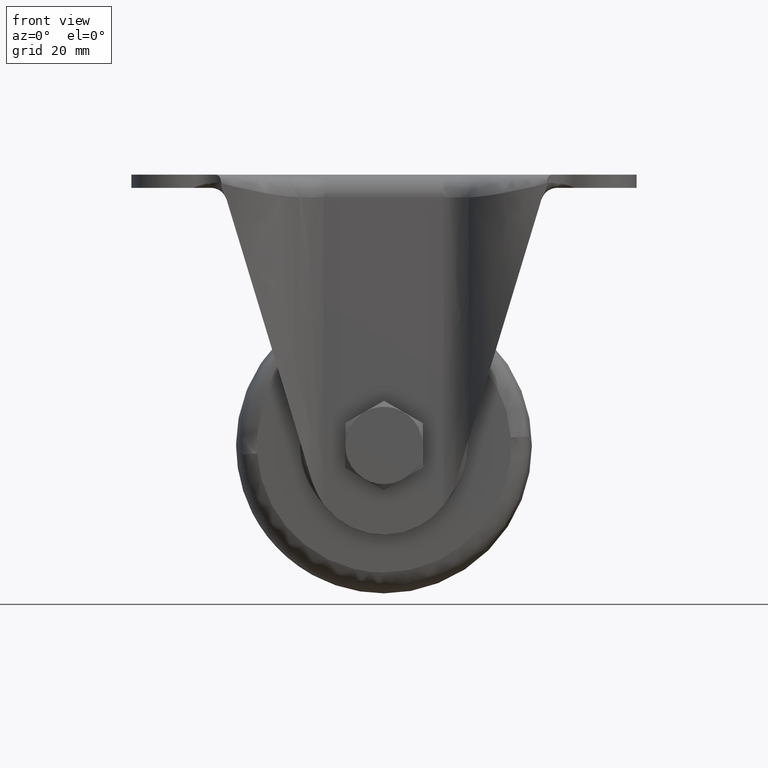
[diagram: clean part render]
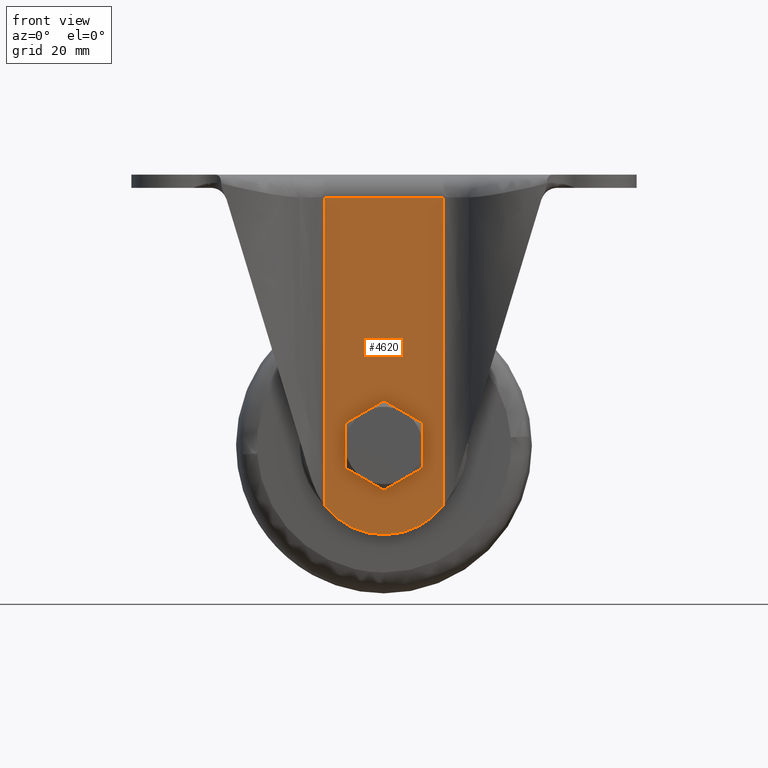
[diagram: same view with one face highlighted and labeled with its STEP entity id]
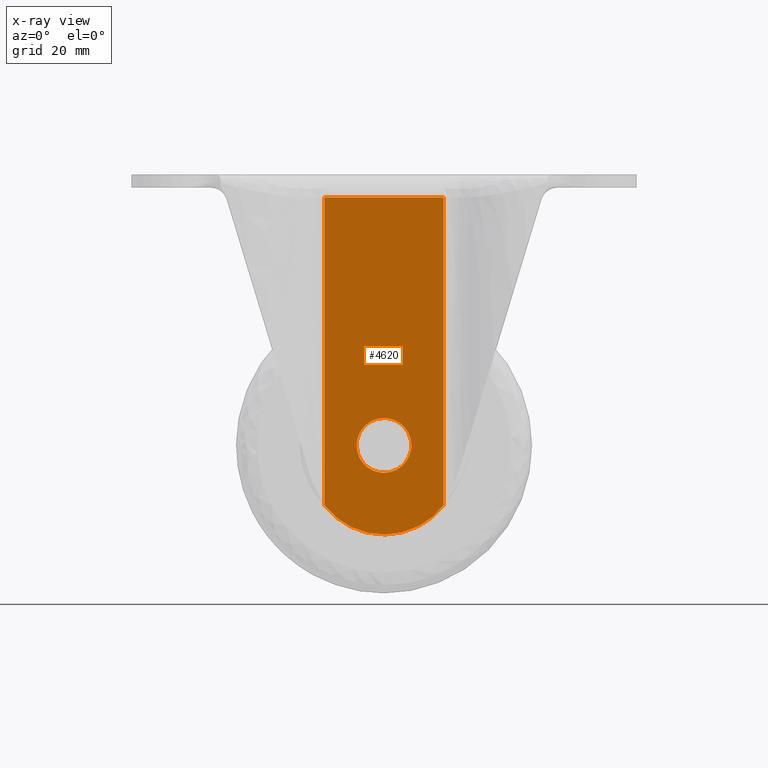
[diagram: x-ray of the same camera — body ghosted, the highlighted face saturated]
A machine part, front view. The second image highlights one B-rep face of the part: STEP entity #4620.
The next image is the same camera in x-ray: the body ghosted, the highlighted face saturated — about 0% of this face is hidden behind the body in this view.
In plain terms, the highlighted face is a freeform B-spline surface patch.
Its self-contained STEP definition (entity closure, byte-faithful):
#3469=CARTESIAN_POINT('',(-6.004737349291819,-24.0,-59.552402549338439));
#3470=VERTEX_POINT('',#3469);
#3471=CARTESIAN_POINT('',(0.0,-24.0,-65.504966000000110));
#3472=VERTEX_POINT('',#3471);
#3473=CARTESIAN_POINT('',(-6.004737349291821,-24.0,-59.552402549338446));
#3474=CARTESIAN_POINT('',(-5.952790114672094,-24.000000000000004,-65.504966000000124));
#3475=CARTESIAN_POINT('',(0.0,-24.0,-65.504966000000110));
#3483=(BOUNDED_CURVE()B_SPLINE_CURVE(2,(#3473,#3474,#3475),.UNSPECIFIED.,.F.,.U.)B_SPLINE_CURVE_WITH_KNOTS((3,3),(0.751539894345926,1.0),.UNSPECIFIED.)CURVE()GEOMETRIC_REPRESENTATION_ITEM()RATIONAL_B_SPLINE_CURVE((0.996414028075090,0.708910879632991,1.0))REPRESENTATION_ITEM(''));
#3484=EDGE_CURVE('',#3470,#3472,#3483,.T.);
#3486=CARTESIAN_POINT('',(6.004737349291819,-24.0,-59.447597450661547));
#3487=VERTEX_POINT('',#3486);
#3488=CARTESIAN_POINT('',(0.0,-24.0,-65.504966000000110));
#3489=CARTESIAN_POINT('',(6.004966000000110,-24.0,-65.504966000000110));
#3490=CARTESIAN_POINT('',(6.004966000000110,-24.0,-59.500000000000000));
#3491=CARTESIAN_POINT('',(6.004966000000110,-24.000000000000007,-59.473798226489151));
#3492=CARTESIAN_POINT('',(6.004737349291820,-24.000000000000004,-59.447597450661569));
#3500=(BOUNDED_CURVE()B_SPLINE_CURVE(2,(#3488,#3489,#3490,#3491,#3492),.UNSPECIFIED.,.F.,.U.)B_SPLINE_CURVE_WITH_KNOTS((3,2,3),(0.0,0.250000000000000,0.251539894345926),.UNSPECIFIED.)CURVE()GEOMETRIC_REPRESENTATION_ITEM()RATIONAL_B_SPLINE_CURVE((1.0,0.707106781186547,1.0,0.998195901553556,0.996414028075090))REPRESENTATION_ITEM(''));
#3501=EDGE_CURVE('',#3472,#3487,#3500,.T.);
#3568=CARTESIAN_POINT('',(0.0,-24.0,-53.495033999999883));
#3569=VERTEX_POINT('',#3568);
#3570=CARTESIAN_POINT('',(0.0,-24.0,-53.495033999999883));
#3571=CARTESIAN_POINT('',(-6.004966000000110,-24.0,-53.495033999999897));
#3572=CARTESIAN_POINT('',(-6.004966000000110,-24.0,-59.500000000000000));
#3573=CARTESIAN_POINT('',(-6.004966000000110,-24.000000000000007,-59.526201773510849));
#3574=CARTESIAN_POINT('',(-6.004737349291820,-24.000000000000004,-59.552402549338446));
#3582=(BOUNDED_CURVE()B_SPLINE_CURVE(2,(#3570,#3571,#3572,#3573,#3574),.UNSPECIFIED.,.F.,.U.)B_SPLINE_CURVE_WITH_KNOTS((3,2,3),(0.500000000000000,0.750000000000000,0.751539894345926),.UNSPECIFIED.)CURVE()GEOMETRIC_REPRESENTATION_ITEM()RATIONAL_B_SPLINE_CURVE((1.0,0.707106781186547,1.0,0.998195901553556,0.996414028075090))REPRESENTATION_ITEM(''));
#3583=EDGE_CURVE('',#3569,#3470,#3582,.T.);
#3617=CARTESIAN_POINT('',(6.004737349291820,-23.999999999999996,-59.447597450661561));
#3618=CARTESIAN_POINT('',(5.952790114672085,-23.999999999999993,-53.495033999999876));
#3619=CARTESIAN_POINT('',(0.0,-24.0,-53.495033999999883));
#3627=(BOUNDED_CURVE()B_SPLINE_CURVE(2,(#3617,#3618,#3619),.UNSPECIFIED.,.F.,.U.)B_SPLINE_CURVE_WITH_KNOTS((3,3),(0.251539894345926,0.500000000000000),.UNSPECIFIED.)CURVE()GEOMETRIC_REPRESENTATION_ITEM()RATIONAL_B_SPLINE_CURVE((0.996414028075089,0.708910879632991,1.0))REPRESENTATION_ITEM(''));
#3628=EDGE_CURVE('',#3487,#3569,#3627,.T.);
#3679=CARTESIAN_POINT('',(13.112529000000640,-23.999999999999648,-72.615372927514002));
#3680=VERTEX_POINT('',#3679);
#3700=CARTESIAN_POINT('',(-13.112339000000080,-24.0,-72.615621673442291));
#3701=VERTEX_POINT('',#3700);
#3702=CARTESIAN_POINT('',(-13.112339000000080,-24.0,-72.615621673442291));
#3703=CARTESIAN_POINT('',(-12.417725831248200,-24.0,-73.525299456196322));
#3704=CARTESIAN_POINT('',(-11.083135146959631,-24.000000000000099,-74.939275140767862));
#3705=CARTESIAN_POINT('',(-8.890997289151644,-23.999999999999790,-76.566771862925293));
#3706=CARTESIAN_POINT('',(-6.906420154542095,-24.000000000000291,-77.638368338820328));
#3707=CARTESIAN_POINT('',(-4.503213310975804,-23.999999999999890,-78.549583937599280));
#3708=CARTESIAN_POINT('',(-1.860175539993448,-23.999999999999641,-79.087873210821115));
#3709=CARTESIAN_POINT('',(0.951082077568282,-24.000000000000050,-79.138166052318240));
#3710=CARTESIAN_POINT('',(3.303138813664660,-23.999999999999869,-78.815443455115485));
#3711=CARTESIAN_POINT('',(5.628320188742806,-24.000000000000089,-78.174216077863946));
#3712=CARTESIAN_POINT('',(7.657297217893557,-23.999999999999961,-77.277368959635155));
#3713=CARTESIAN_POINT('',(9.503498799746195,-24.000000000000082,-76.129712946015601));
#3714=CARTESIAN_POINT('',(11.304481615314980,-23.999999999999631,-74.710678862472818));
#3715=CARTESIAN_POINT('',(12.465797078637250,-24.000000000000750,-73.462294132649106));
#3716=CARTESIAN_POINT('',(13.112529000000640,-23.999999999999648,-72.615372927514002));
#3717=B_SPLINE_CURVE_WITH_KNOTS('',3,(#3702,#3703,#3704,#3705,#3706,#3707,#3708,#3709,#3710,#3711,#3712,#3713,#3714,#3715,#3716),.UNSPECIFIED.,.F.,.U.,(4,1,1,1,1,1,1,1,1,1,1,1,4),(0.000000103569533,3.433614908485872,5.801637265684818,8.169660874223364,10.182475154637670,13.497740385265439,16.220903356492130,18.588906306610241,20.601732532866549,23.443371116569079,25.219400504997900,27.113796305889348,30.310618016159300),.UNSPECIFIED.);
#3718=EDGE_CURVE('',#3701,#3680,#3717,.T.);
#4133=CARTESIAN_POINT('',(13.112529000000020,-24.0,-5.0));
#4134=VERTEX_POINT('',#4133);
#4148=CARTESIAN_POINT('',(13.112529000000640,-23.999999999999648,-72.615372927514002));
#4149=CARTESIAN_POINT('',(13.112529000000020,-24.0,-5.0));
#4150=QUASI_UNIFORM_CURVE('',1,(#4148,#4149),.UNSPECIFIED.,.F.,.U.);
#4151=EDGE_CURVE('',#3680,#4134,#4150,.T.);
#4593=CARTESIAN_POINT('',(-14.422271105771230,-24.0,-1.298714839803520));
#4594=CARTESIAN_POINT('',(-14.422271105771230,-24.0,-82.801093029915961));
#4595=CARTESIAN_POINT('',(14.422461809177561,-24.0,-1.298714839803520));
#4596=CARTESIAN_POINT('',(14.422461809177561,-24.0,-82.801093029915975));
#4597=B_SPLINE_SURFACE_WITH_KNOTS('',1,1,((#4593,#4595),(#4594,#4596)),.UNSPECIFIED.,.F.,.F.,.U.,(2,2),(2,2),(0.0,81.502378190112452),(0.0,28.844732914948800),.UNSPECIFIED.);
#4598=ORIENTED_EDGE('',*,*,#4151,.T.);
#4599=CARTESIAN_POINT('',(-13.112339000000080,-24.0,-5.0));
#4600=VERTEX_POINT('',#4599);
#4601=CARTESIAN_POINT('',(13.112529000000020,-24.0,-5.0));
#4602=CARTESIAN_POINT('',(-13.112339000000080,-24.0,-5.0));
#4603=QUASI_UNIFORM_CURVE('',1,(#4601,#4602),.UNSPECIFIED.,.F.,.U.);
#4604=EDGE_CURVE('',#4134,#4600,#4603,.T.);
#4605=ORIENTED_EDGE('',*,*,#4604,.T.);
#4606=CARTESIAN_POINT('',(-13.112339000000080,-24.0,-72.615621673442291));
#4607=CARTESIAN_POINT('',(-13.112339000000080,-24.0,-5.0));
#4608=QUASI_UNIFORM_CURVE('',1,(#4606,#4607),.UNSPECIFIED.,.F.,.U.);
#4609=EDGE_CURVE('',#3701,#4600,#4608,.T.);
#4610=ORIENTED_EDGE('',*,*,#4609,.F.);
#4611=ORIENTED_EDGE('',*,*,#3718,.T.);
#4612=EDGE_LOOP('',(#4598,#4605,#4610,#4611));
#4613=FACE_OUTER_BOUND('',#4612,.T.);
#4614=ORIENTED_EDGE('',*,*,#3501,.F.);
#4615=ORIENTED_EDGE('',*,*,#3484,.F.);
#4616=ORIENTED_EDGE('',*,*,#3583,.F.);
#4617=ORIENTED_EDGE('',*,*,#3628,.F.);
#4618=EDGE_LOOP('',(#4614,#4615,#4616,#4617));
#4619=FACE_BOUND('',#4618,.T.);
#4620=ADVANCED_FACE('',(#4613,#4619),#4597,.T.);